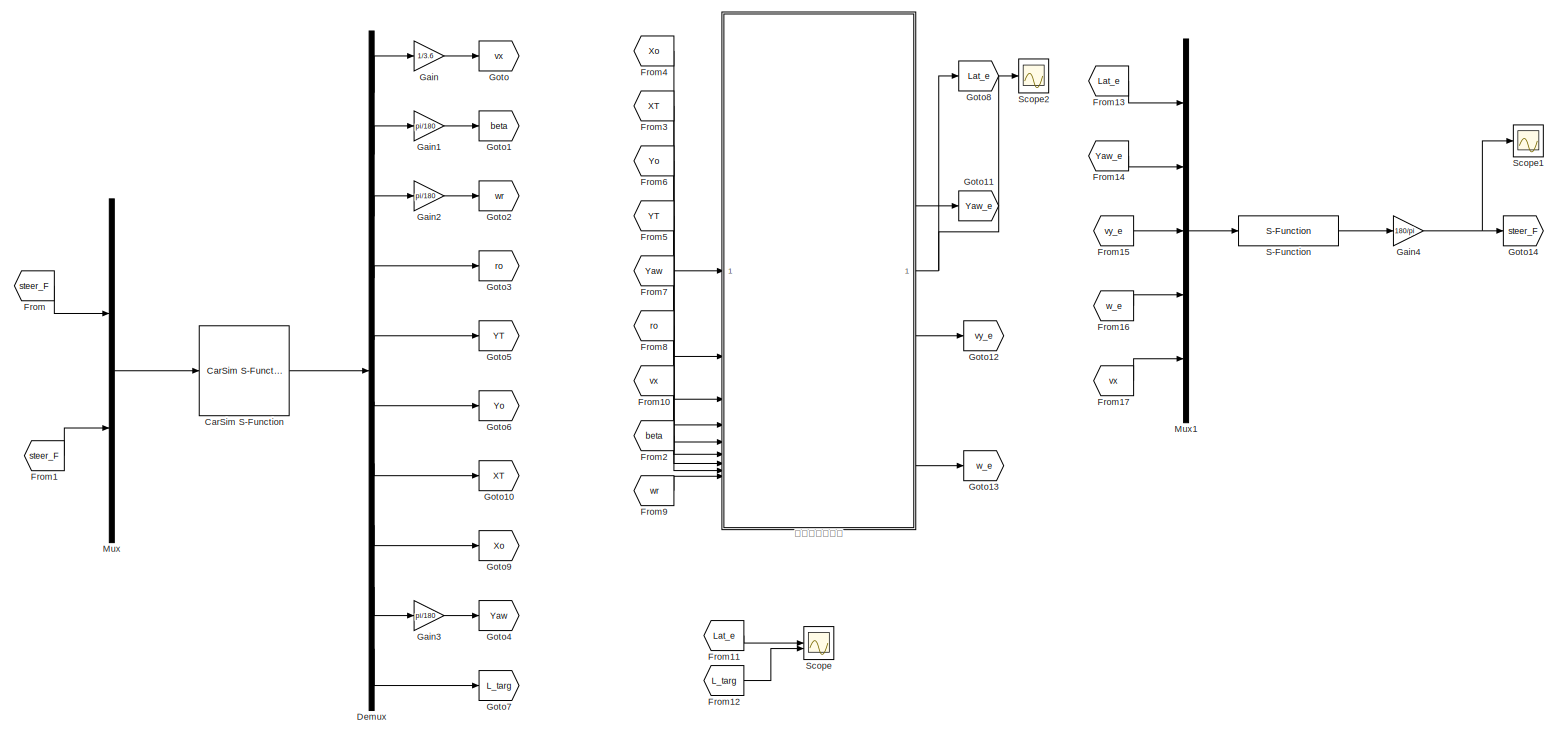
[diagram: root canvas - part 1/1, most of the canvas]
MODEL slx_796d85da928f
KIND model
CONFIG AbsTol = auto
CONFIG EnableMultiTasking = off
CONFIG FixedStep = auto
CONFIG MaxStep = auto
CONFIG MinStep = auto
CONFIG RelTol = 1e-3
CONFIG SampleTimeConstraint = Unconstrained
CONFIG SolverName = VariableStepAuto
CONFIG StartTime = 0.0
CONFIG StopTime = 15
BLOCK [Reference] CarSim S-Function  REF=Solver_SF/CarSim S-Function
  Priority = 1
  SourceBlock = Solver_SF/CarSim S-Function
  SourceProductName = CarSim S-Function
  SourceType = Vehicle math model library
BLOCK [Demux] Demux
  Outputs = 10
BLOCK [From] From
  GotoTag = steer_F
BLOCK [From] From1
  GotoTag = steer_F
BLOCK [From] From10
  GotoTag = vx
BLOCK [From] From11
  GotoTag = Lat_e
BLOCK [From] From12
  GotoTag = L_targ
BLOCK [From] From13
  GotoTag = Lat_e
BLOCK [From] From14
  GotoTag = Yaw_e
BLOCK [From] From15
  GotoTag = vy_e
BLOCK [From] From16
  GotoTag = w_e
BLOCK [From] From17
  GotoTag = vx
BLOCK [From] From2
  GotoTag = beta
BLOCK [From] From3
  GotoTag = XT
BLOCK [From] From4
  GotoTag = Xo
BLOCK [From] From5
  GotoTag = YT
BLOCK [From] From6
  GotoTag = Yo
BLOCK [From] From7
  GotoTag = Yaw
BLOCK [From] From8
  GotoTag = ro
BLOCK [From] From9
  GotoTag = wr
BLOCK [Gain] Gain
  Gain = 1/3.6
BLOCK [Gain] Gain1
  Gain = pi/180
BLOCK [Gain] Gain2
  Gain = pi/180
BLOCK [Gain] Gain3
  Gain = pi/180
BLOCK [Gain] Gain4
  Gain = 180/pi
BLOCK [Goto] Goto
  GotoTag = vx
BLOCK [Goto] Goto1
  GotoTag = beta
BLOCK [Goto] Goto10
  GotoTag = XT
BLOCK [Goto] Goto11
  GotoTag = Yaw_e
BLOCK [Goto] Goto12
  GotoTag = vy_e
BLOCK [Goto] Goto13
  GotoTag = w_e
BLOCK [Goto] Goto14
  GotoTag = steer_F
BLOCK [Goto] Goto2
  GotoTag = wr
BLOCK [Goto] Goto3
  GotoTag = ro
BLOCK [Goto] Goto4
  GotoTag = Yaw
BLOCK [Goto] Goto5
  GotoTag = YT
BLOCK [Goto] Goto6
  GotoTag = Yo
BLOCK [Goto] Goto7
  GotoTag = L_targ
BLOCK [Goto] Goto8
  GotoTag = Lat_e
BLOCK [Goto] Goto9
  GotoTag = Xo
BLOCK [Mux] Mux
  DisplayOption = bar
  Inputs = 2
BLOCK [Mux] Mux1
  DisplayOption = bar
  Inputs = 5
BLOCK [S-Function] S-Function
  EnableBusSupport = off
  FunctionName = MPC_Final_osqp
  SFcnIsStateOwnerBlock = off
  SFunctionDeploymentMode = off
BLOCK [Scope] Scope
  Floating = off
  NumInputPorts = 2
  ScopeSpecificationString = Simulink.scopes.TimeScopeBlockCfg('CurrentConfiguration', extmgr.ConfigurationSet(extmgr.Configuration('Core','General UI',true,'FigureColor',[1 1 1]),extmgr.Configuration('Core','Source UI',true),extmgr.Configuration('Sources','WiredSimulink',true,'DataLoggingVariableName','tinympc_error','DataLogging',true,'DataLoggingSaveFormat','StructureWithTime'),extmgr.Configuration('Visuals','Time Domain',...<+1852ch>
BLOCK [Scope] Scope1
  Floating = off
  NumInputPorts = 1
  ScopeSpecificationString = Simulink.scopes.TimeScopeBlockCfg('CurrentConfiguration', extmgr.ConfigurationSet(extmgr.Configuration('Core','General UI',true,'FigureColor',[1 1 1]),extmgr.Configuration('Core','Source UI',true),extmgr.Configuration('Sources','WiredSimulink',true,'DataLoggingVariableName','tinympc_steering','DataLogging',true,'DataLoggingSaveFormat','StructureWithTime'),extmgr.Configuration('Visuals','Time Domai...<+1611ch>
BLOCK [Scope] Scope2
  Floating = off
  NumInputPorts = 1
  ScopeSpecificationString = Simulink.scopes.TimeScopeBlockCfg('CurrentConfiguration', extmgr.ConfigurationSet(extmgr.Configuration('Core','General UI',true,'FigureColor',[1 1 1]),extmgr.Configuration('Core','Source UI',true),extmgr.Configuration('Sources','WiredSimulink',true,'DataLoggingVariableName','ScopeData1','DataLogging',true,'DataLoggingSaveFormat','StructureWithTime'),extmgr.Configuration('Visuals','Time Domain',tru...<+1798ch>
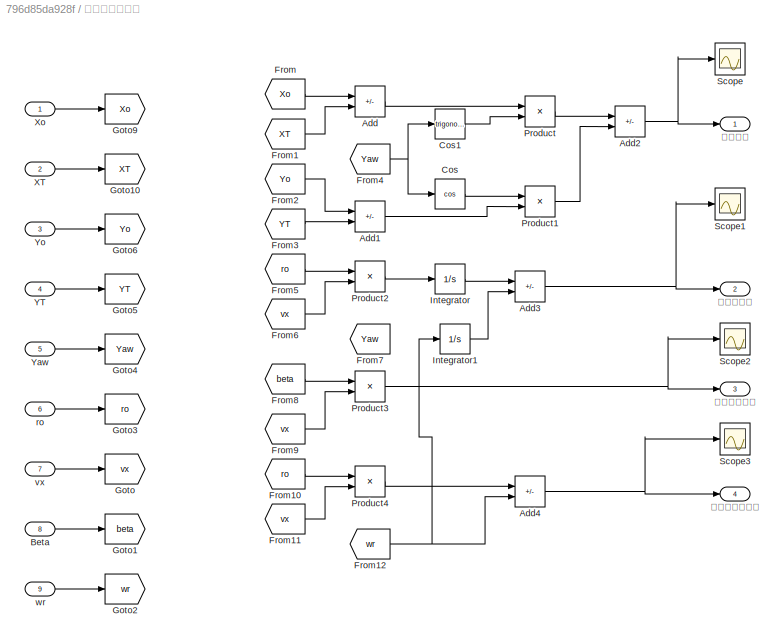
BLOCK [SubSystem] 状态量偏差计算
BLOCK [Sum] 状态量偏差计算/Add
  IconShape = rectangular
  Inputs = +-
BLOCK [Sum] 状态量偏差计算/Add1
  IconShape = rectangular
  Inputs = +-
BLOCK [Sum] 状态量偏差计算/Add2
  IconShape = rectangular
  Inputs = -+
BLOCK [Sum] 状态量偏差计算/Add3
  IconShape = rectangular
  Inputs = -+
BLOCK [Sum] 状态量偏差计算/Add4
  IconShape = rectangular
  Inputs = -+
BLOCK [Inport] 状态量偏差计算/Beta
  Port = 8
BLOCK [Trigonometry] 状态量偏差计算/Cos
  Operator = cos
BLOCK [Trigonometry] 状态量偏差计算/Cos1
BLOCK [From] 状态量偏差计算/From
  GotoTag = Xo
BLOCK [From] 状态量偏差计算/From1
  GotoTag = XT
BLOCK [From] 状态量偏差计算/From10
  GotoTag = ro
BLOCK [From] 状态量偏差计算/From11
  GotoTag = vx
BLOCK [From] 状态量偏差计算/From12
  GotoTag = wr
BLOCK [From] 状态量偏差计算/From2
  GotoTag = Yo
BLOCK [From] 状态量偏差计算/From3
  GotoTag = YT
BLOCK [From] 状态量偏差计算/From4
  GotoTag = Yaw
BLOCK [From] 状态量偏差计算/From5
  GotoTag = ro
BLOCK [From] 状态量偏差计算/From6
  GotoTag = vx
BLOCK [From] 状态量偏差计算/From7
  GotoTag = Yaw
BLOCK [From] 状态量偏差计算/From8
  GotoTag = beta
BLOCK [From] 状态量偏差计算/From9
  GotoTag = vx
BLOCK [Goto] 状态量偏差计算/Goto
  GotoTag = vx
BLOCK [Goto] 状态量偏差计算/Goto1
  GotoTag = beta
BLOCK [Goto] 状态量偏差计算/Goto10
  GotoTag = XT
BLOCK [Goto] 状态量偏差计算/Goto2
  GotoTag = wr
BLOCK [Goto] 状态量偏差计算/Goto3
  GotoTag = ro
BLOCK [Goto] 状态量偏差计算/Goto4
  GotoTag = Yaw
BLOCK [Goto] 状态量偏差计算/Goto5
  GotoTag = YT
BLOCK [Goto] 状态量偏差计算/Goto6
  GotoTag = Yo
BLOCK [Goto] 状态量偏差计算/Goto9
  GotoTag = Xo
BLOCK [Integrator] 状态量偏差计算/Integrator
BLOCK [Integrator] 状态量偏差计算/Integrator1
BLOCK [Product] 状态量偏差计算/Product
BLOCK [Product] 状态量偏差计算/Product1
BLOCK [Product] 状态量偏差计算/Product2
BLOCK [Product] 状态量偏差计算/Product3
BLOCK [Product] 状态量偏差计算/Product4
BLOCK [Scope] 状态量偏差计算/Scope
  Floating = off
  NumInputPorts = 1
  ScopeSpecificationString = Simulink.scopes.TimeScopeBlockCfg('CurrentConfiguration', extmgr.ConfigurationSet(extmgr.Configuration('Core','General UI',true),extmgr.Configuration('Core','Source UI',true),extmgr.Configuration('Sources','WiredSimulink',true),extmgr.Configuration('Visuals','Time Domain',true,'SerializedDisplays',{struct('MinYLimReal','-0.70073','MaxYLimReal','0.61589','YLabelReal','','MinYLimMag','0.00000','MaxY...<+1324ch>
BLOCK [Scope] 状态量偏差计算/Scope1
  Floating = off
  NumInputPorts = 1
  ScopeSpecificationString = Simulink.scopes.TimeScopeBlockCfg('CurrentConfiguration', extmgr.ConfigurationSet(extmgr.Configuration('Core','General UI',true),extmgr.Configuration('Core','Source UI',true),extmgr.Configuration('Sources','WiredSimulink',true,'DataLoggingVariableName','ScopeData2'),extmgr.Configuration('Visuals','Time Domain',true,'SerializedDisplays',{struct('MinYLimReal','-0.03026','MaxYLimReal','0.03032','YLab...<+1507ch>
BLOCK [Scope] 状态量偏差计算/Scope2
  Floating = off
  NumInputPorts = 1
  ScopeSpecificationString = Simulink.scopes.TimeScopeBlockCfg('CurrentConfiguration', extmgr.ConfigurationSet(extmgr.Configuration('Core','General UI',true),extmgr.Configuration('Core','Source UI',true),extmgr.Configuration('Sources','WiredSimulink',true,'DataLoggingVariableName','vx','DataLogging',true,'DataLoggingSaveFormat','StructureWithTime'),extmgr.Configuration('Visuals','Time Domain',true,'SerializedDisplays',{struct...<+1566ch>
BLOCK [Scope] 状态量偏差计算/Scope3
  Floating = off
  NumInputPorts = 1
  ScopeSpecificationString = Simulink.scopes.TimeScopeBlockCfg('CurrentConfiguration', extmgr.ConfigurationSet(extmgr.Configuration('Core','General UI',true),extmgr.Configuration('Core','Source UI',true),extmgr.Configuration('Sources','WiredSimulink',true,'DataLoggingVariableName','yawrate','DataLogging',true,'DataLoggingSaveFormat','StructureWithTime'),extmgr.Configuration('Visuals','Time Domain',true,'SerializedDisplays',{s...<+1576ch>
BLOCK [Inport] 状态量偏差计算/XT
  Port = 2
BLOCK [Inport] 状态量偏差计算/Xo
BLOCK [Inport] 状态量偏差计算/YT
  Port = 4
BLOCK [Inport] 状态量偏差计算/Yaw
  Port = 5
BLOCK [Inport] 状态量偏差计算/Yo
  Port = 3
BLOCK [Inport] 状态量偏差计算/ro
  Port = 6
BLOCK [Inport] 状态量偏差计算/vx
  Port = 7
BLOCK [Inport] 状态量偏差计算/wr
  Port = 9
BLOCK [Outport] 状态量偏差计算/侧向速度偏差
  Port = 3
BLOCK [Outport] 状态量偏差计算/横向偏差
BLOCK [Outport] 状态量偏差计算/横摆角速度偏差
  Port = 4
BLOCK [Outport] 状态量偏差计算/航向角偏差
  Port = 2
LINE CarSim S-Function:1 -> Demux:1
LINE Demux:1 -> Gain:1
LINE Demux:10 -> Goto7:1
LINE Demux:2 -> Gain1:1
LINE Demux:3 -> Gain2:1
LINE Demux:4 -> Goto3:1
LINE Demux:5 -> Goto5:1
LINE Demux:6 -> Goto6:1
LINE Demux:7 -> Goto10:1
LINE Demux:8 -> Goto9:1
LINE Demux:9 -> Gain3:1
LINE From10:1 -> 状态量偏差计算:7
LINE From11:1 -> Scope:1
LINE From12:1 -> Scope:2
LINE From13:1 -> Mux1:1
LINE From14:1 -> Mux1:2
LINE From15:1 -> Mux1:3
LINE From16:1 -> Mux1:4
LINE From17:1 -> Mux1:5
LINE From1:1 -> Mux:2
LINE From2:1 -> 状态量偏差计算:8
LINE From3:1 -> 状态量偏差计算:2
LINE From4:1 -> 状态量偏差计算:1
LINE From5:1 -> 状态量偏差计算:4
LINE From6:1 -> 状态量偏差计算:3
LINE From7:1 -> 状态量偏差计算:5
LINE From8:1 -> 状态量偏差计算:6
LINE From9:1 -> 状态量偏差计算:9
LINE From:1 -> Mux:1
LINE Gain1:1 -> Goto1:1
LINE Gain2:1 -> Goto2:1
LINE Gain3:1 -> Goto4:1
NET Gain4:1 -> Goto14:1, Scope1:1
LINE Gain:1 -> Goto:1
LINE Mux1:1 -> S-Function:1
LINE Mux:1 -> CarSim S-Function:1
LINE S-Function:1 -> Gain4:1
LINE 状态量偏差计算/Add1:1 -> 状态量偏差计算/Product1:2
NET 状态量偏差计算/Add2:1 -> 状态量偏差计算/Scope:1, 状态量偏差计算/横向偏差:1
NET 状态量偏差计算/Add3:1 -> 状态量偏差计算/Scope1:1, 状态量偏差计算/航向角偏差:1
NET 状态量偏差计算/Add4:1 -> 状态量偏差计算/Scope3:1, 状态量偏差计算/横摆角速度偏差:1
LINE 状态量偏差计算/Add:1 -> 状态量偏差计算/Product:1
LINE 状态量偏差计算/Beta:1 -> 状态量偏差计算/Goto1:1
LINE 状态量偏差计算/Cos1:1 -> 状态量偏差计算/Product:2
LINE 状态量偏差计算/Cos:1 -> 状态量偏差计算/Product1:1
LINE 状态量偏差计算/From10:1 -> 状态量偏差计算/Product4:1
LINE 状态量偏差计算/From11:1 -> 状态量偏差计算/Product4:2
NET 状态量偏差计算/From12:1 -> 状态量偏差计算/Add4:2, 状态量偏差计算/Integrator1:1
LINE 状态量偏差计算/From1:1 -> 状态量偏差计算/Add:2
LINE 状态量偏差计算/From2:1 -> 状态量偏差计算/Add1:1
LINE 状态量偏差计算/From3:1 -> 状态量偏差计算/Add1:2
NET 状态量偏差计算/From4:1 -> 状态量偏差计算/Cos1:1, 状态量偏差计算/Cos:1
LINE 状态量偏差计算/From5:1 -> 状态量偏差计算/Product2:1
LINE 状态量偏差计算/From6:1 -> 状态量偏差计算/Product2:2
LINE 状态量偏差计算/From8:1 -> 状态量偏差计算/Product3:1
LINE 状态量偏差计算/From9:1 -> 状态量偏差计算/Product3:2
LINE 状态量偏差计算/From:1 -> 状态量偏差计算/Add:1
LINE 状态量偏差计算/Integrator1:1 -> 状态量偏差计算/Add3:2
LINE 状态量偏差计算/Integrator:1 -> 状态量偏差计算/Add3:1
LINE 状态量偏差计算/Product1:1 -> 状态量偏差计算/Add2:2
LINE 状态量偏差计算/Product2:1 -> 状态量偏差计算/Integrator:1
NET 状态量偏差计算/Product3:1 -> 状态量偏差计算/Scope2:1, 状态量偏差计算/侧向速度偏差:1
LINE 状态量偏差计算/Product4:1 -> 状态量偏差计算/Add4:1
LINE 状态量偏差计算/Product:1 -> 状态量偏差计算/Add2:1
LINE 状态量偏差计算/XT:1 -> 状态量偏差计算/Goto10:1
LINE 状态量偏差计算/Xo:1 -> 状态量偏差计算/Goto9:1
LINE 状态量偏差计算/YT:1 -> 状态量偏差计算/Goto5:1
LINE 状态量偏差计算/Yaw:1 -> 状态量偏差计算/Goto4:1
LINE 状态量偏差计算/Yo:1 -> 状态量偏差计算/Goto6:1
LINE 状态量偏差计算/ro:1 -> 状态量偏差计算/Goto3:1
LINE 状态量偏差计算/vx:1 -> 状态量偏差计算/Goto:1
LINE 状态量偏差计算/wr:1 -> 状态量偏差计算/Goto2:1
NET 状态量偏差计算:1 -> Goto8:1, Scope2:1
LINE 状态量偏差计算:2 -> Goto11:1
LINE 状态量偏差计算:3 -> Goto12:1
LINE 状态量偏差计算:4 -> Goto13:1
note: NET lines group one-source signal fan-out (src -> all destinations, sorted); 1:1 wires keep LINE
